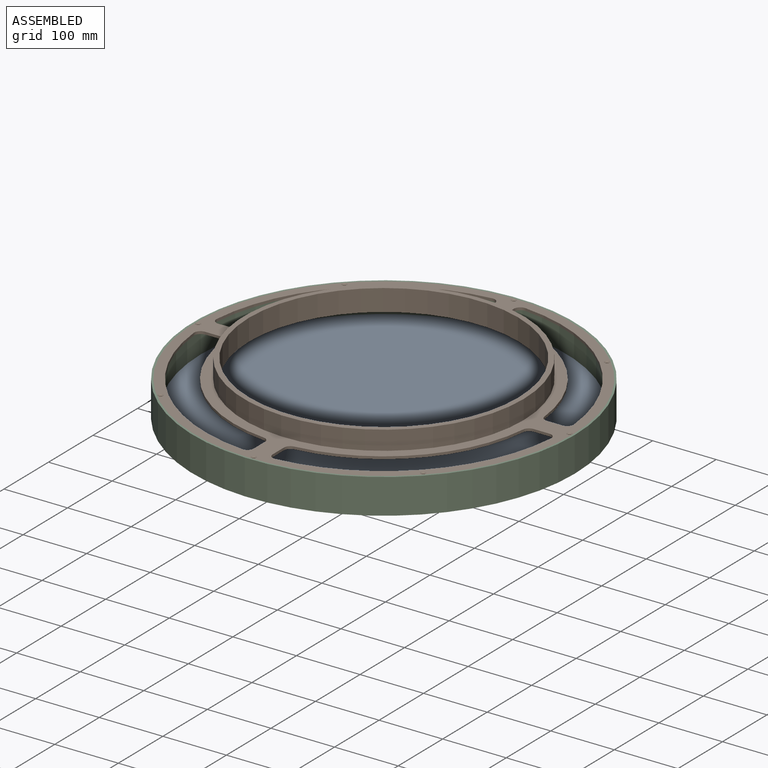
[diagram: assembled view]
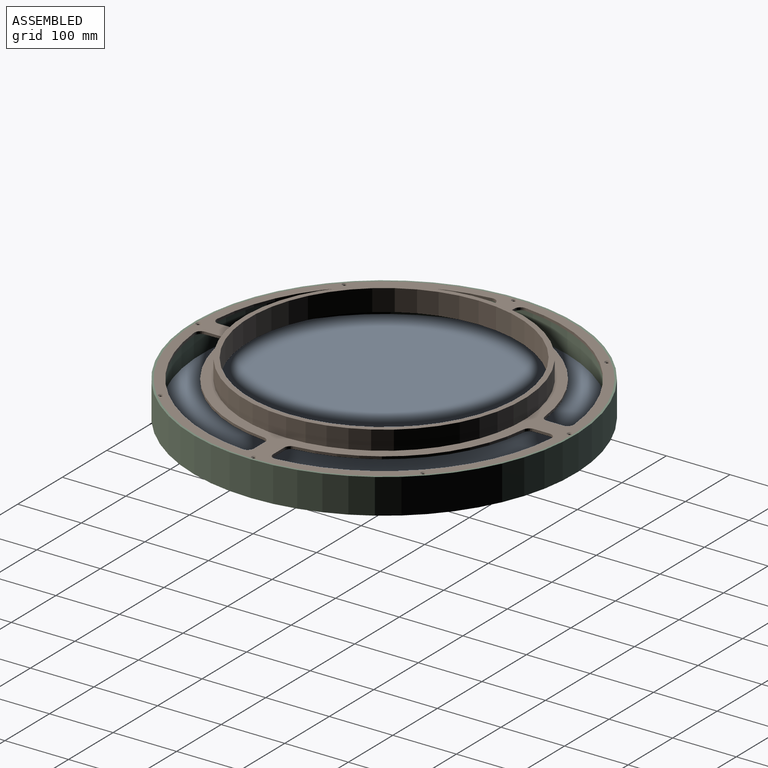
[diagram: assembled view, second angle]
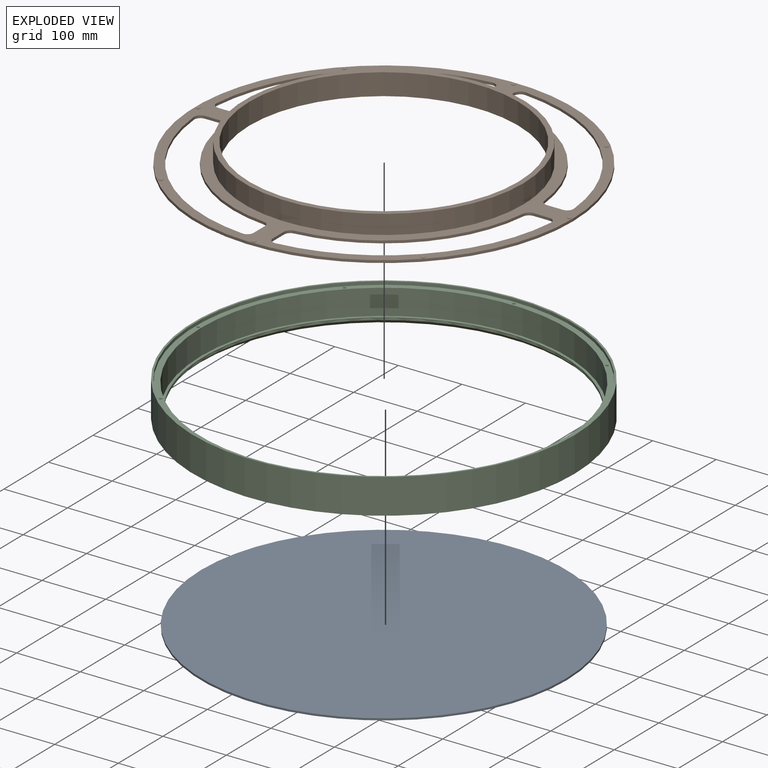
[diagram: exploded view]
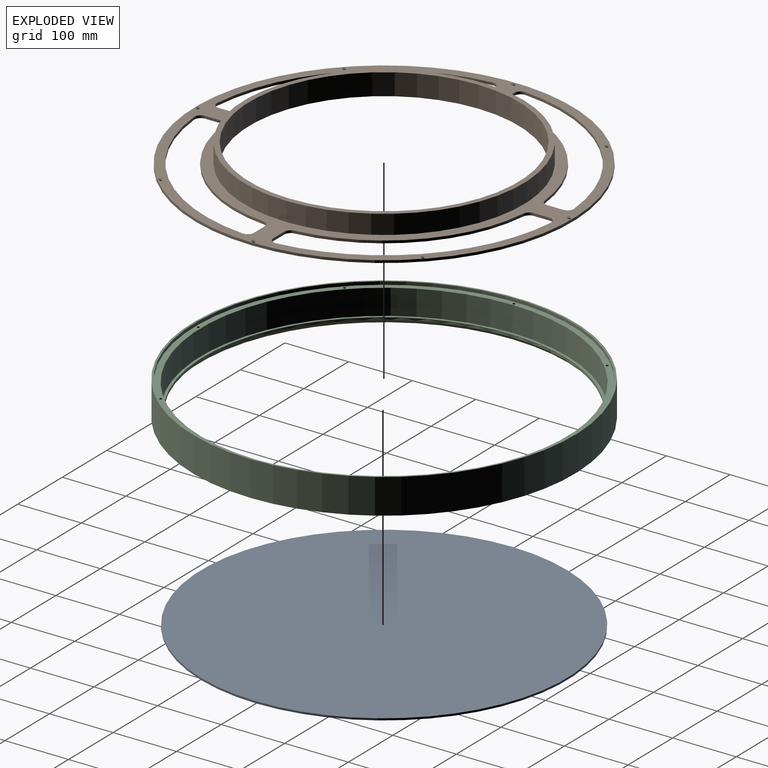
[diagram: exploded view, second angle]
ASSEMBLY  parts=3 mates=4
PART A: 3 faces, bbox 575x575x3 mm
  f0: cylinder r=287.5mm len=575mm, axis (0,0,-1), area 5419.2mm2, adj f1,f2
  f1: plane 575x575mm, normal (0,0,1), area 259672.3mm2, adj f0
  f2: plane 575x575mm, normal (0,0,-1), area 259672.3mm2, adj f0
PART B: 54 faces, bbox 594x594x34 mm
  f0: cylinder r=220mm len=440mm, axis (0,0,1), area 41469mm2, adj f1,f5
  f1: plane 594x594mm, normal (0,0,1), area 57037.7mm2, adj f0,f2,f6,f7,f8,f9,f10,f11
  f2: cylinder r=297mm len=594mm, axis (0,0,1), area 7464.4mm2, adj f1,f3
  f3: plane 594x594mm, normal (0,0,-1), area 68169.9mm2, adj f2,f4,f6,f7,f8,f9,f10,f11
  f4: cylinder r=212mm len=424mm, axis (0,0,1), area 45289.2mm2, adj f3,f5
  f5: plane 440x440mm, normal (0,0,1), area 10857.3mm2, adj f0,f4
  f6: plane 25.12x4mm, normal (-1,0,0), area 100.5mm2, adj f1,f3,f10,f11
  f7: cylinder r=237mm len=211.8mm, axis (0,0,1), area 1296.9mm2, adj f1,f3,f10,f12
  f8: cylinder r=282mm len=254.89mm, axis (0,0,1), area 1564.2mm2, adj f1,f3,f11,f13
  f9: plane 25.12x4mm, normal (0,1,0), area 100.5mm2, adj f1,f3,f12,f13
  f10: cylinder r=10mm len=9.95mm, axis (0,0,1), area 58.8mm2, adj f1,f3,f6,f7
  f11: cylinder r=10mm len=10.92mm, axis (0,0,1), area 66.5mm2, adj f1,f3,f6,f8
  f12: cylinder r=10mm len=9.95mm, axis (0,0,1), area 58.8mm2, adj f1,f3,f7,f9
  f13: cylinder r=10mm len=10.92mm, axis (0,0,1), area 66.5mm2, adj f1,f3,f8,f9
  f14: plane 25.12x4mm, normal (0,1,0), area 100.5mm2, adj f1,f3,f18,f19
  f15: cylinder r=237mm len=211.8mm, axis (0,0,1), area 1296.9mm2, adj f1,f3,f18,f20
  f16: cylinder r=282mm len=254.89mm, axis (0,0,1), area 1564.2mm2, adj f1,f3,f19,f21
  f17: plane 25.12x4mm, normal (1,0,0), area 100.5mm2, adj f1,f3,f20,f21
  f18: cylinder r=10mm len=9.95mm, axis (0,0,1), area 58.8mm2, adj f1,f3,f14,f15
  f19: cylinder r=10mm len=10.92mm, axis (0,0,1), area 66.5mm2, adj f1,f3,f14,f16
  f20: cylinder r=10mm len=9.95mm, axis (0,0,1), area 58.8mm2, adj f1,f3,f15,f17
  f21: cylinder r=10mm len=10.92mm, axis (0,0,1), area 66.5mm2, adj f1,f3,f16,f17
  f22: plane 25.12x4mm, normal (1,0,0), area 100.5mm2, adj f1,f3,f26,f27
  f23: cylinder r=237mm len=211.8mm, axis (0,0,1), area 1296.9mm2, adj f1,f3,f26,f28
  f24: cylinder r=282mm len=254.89mm, axis (0,0,1), area 1564.2mm2, adj f1,f3,f27,f29
  f25: plane 25.12x4mm, normal (0,-1,0), area 100.5mm2, adj f1,f3,f28,f29
  f26: cylinder r=10mm len=9.95mm, axis (0,0,1), area 58.8mm2, adj f1,f3,f22,f23
  f27: cylinder r=10mm len=10.92mm, axis (0,0,1), area 66.5mm2, adj f1,f3,f22,f24
  f28: cylinder r=10mm len=9.95mm, axis (0,0,1), area 58.8mm2, adj f1,f3,f23,f25
  f29: cylinder r=10mm len=10.92mm, axis (0,0,1), area 66.5mm2, adj f1,f3,f24,f25
  f30: plane 25.12x4mm, normal (0,-1,0), area 100.5mm2, adj f1,f3,f34,f35
  f31: cylinder r=237mm len=211.8mm, axis (0,0,1), area 1296.9mm2, adj f1,f3,f34,f36
  f32: cylinder r=282mm len=254.89mm, axis (0,0,1), area 1564.2mm2, adj f1,f3,f35,f37
  f33: plane 25.12x4mm, normal (-1,0,0), area 100.5mm2, adj f1,f3,f36,f37
  f34: cylinder r=10mm len=9.95mm, axis (0,0,1), area 58.8mm2, adj f1,f3,f30,f31
  f35: cylinder r=10mm len=10.92mm, axis (0,0,1), area 66.5mm2, adj f1,f3,f30,f32
  f36: cylinder r=10mm len=9.95mm, axis (0,0,1), area 58.8mm2, adj f1,f3,f31,f33
  f37: cylinder r=10mm len=10.92mm, axis (0,0,1), area 66.5mm2, adj f1,f3,f32,f33
  f38: cylinder r=2.25mm len=4.5mm, axis (0,0,1), area 31.8mm2, adj f3,f39
  f39: cone r=2.25mm half-angle=45deg, axis (0,0,1), area 48.6mm2, adj f1,f38
  f40: cylinder r=2.25mm len=4.5mm, axis (0,0,1), area 31.8mm2, adj f3,f41
  f41: cone r=2.25mm half-angle=45deg, axis (0,0,1), area 48.6mm2, adj f1,f40
  f42: cylinder r=2.25mm len=4.5mm, axis (0,0,1), area 31.8mm2, adj f3,f43
  f43: cone r=2.25mm half-angle=45deg, axis (0,0,1), area 48.6mm2, adj f1,f42
  f44: cylinder r=2.25mm len=4.5mm, axis (0,0,1), area 31.8mm2, adj f3,f45
  f45: cone r=2.25mm half-angle=45deg, axis (0,0,1), area 48.6mm2, adj f1,f44
  f46: cylinder r=2.25mm len=4.5mm, axis (0,0,1), area 31.8mm2, adj f3,f47
  f47: cone r=2.25mm half-angle=45deg, axis (0,0,1), area 48.6mm2, adj f1,f46
  f48: cylinder r=2.25mm len=4.5mm, axis (0,0,1), area 31.8mm2, adj f3,f49
  f49: cone r=2.25mm half-angle=45deg, axis (0,0,1), area 48.6mm2, adj f1,f48
  f50: cylinder r=2.25mm len=4.5mm, axis (0,0,1), area 31.8mm2, adj f3,f51
  f51: cone r=2.25mm half-angle=45deg, axis (0,0,1), area 48.6mm2, adj f1,f50
  f52: cylinder r=2.25mm len=4.5mm, axis (0,0,1), area 31.8mm2, adj f3,f53
  f53: cone r=2.25mm half-angle=45deg, axis (0,0,1), area 48.6mm2, adj f1,f52
PART C: 25 faces, bbox 600x600x55 mm
  f0: plane 600x600mm, normal (0,0,1), area 5626.6mm2, adj f1,f7
  f1: cylinder r=300mm len=600mm, axis (0,0,1), area 103672.6mm2, adj f0,f2
  f2: plane 600x600mm, normal (0,0,-1), area 18535.4mm2, adj f1,f8
  f3: cylinder r=284mm len=568mm, axis (0,0,1), area 7137.7mm2, adj f4,f8
  f4: plane 576x576mm, normal (0,0,1), area 7188mm2, adj f3,f5
  f5: cylinder r=288mm len=576mm, axis (0,0,1), area 72382.3mm2, adj f4,f6
  f6: plane 594x594mm, normal (0,0,1), area 16413.3mm2, adj f5,f7,f10,f12,f14,f16,f18,f20
  f7: cylinder r=297mm len=594mm, axis (0,0,1), area 9330.5mm2, adj f0,f6
  f8: cone r=290mm half-angle=45deg, axis (0,0,-1), area 15301.3mm2, adj f2,f3
  f9: cone r=0mm half-angle=59deg, axis (0,0,1), area 18.6mm2, adj f10
  f10: cylinder r=2.25mm len=15mm, axis (0,0,1), area 212.1mm2, adj f6,f9
  f11: cone r=0mm half-angle=59deg, axis (0,0,1), area 18.6mm2, adj f12
  f12: cylinder r=2.25mm len=15mm, axis (0,0,1), area 212.1mm2, adj f6,f11
  f13: cone r=0mm half-angle=59deg, axis (0,0,1), area 18.6mm2, adj f14
  f14: cylinder r=2.25mm len=15mm, axis (0,0,1), area 212.1mm2, adj f6,f13
  f15: cone r=0mm half-angle=59deg, axis (0,0,1), area 18.6mm2, adj f16
  f16: cylinder r=2.25mm len=15mm, axis (0,0,1), area 212.1mm2, adj f6,f15
  f17: cone r=0mm half-angle=59deg, axis (0,0,1), area 18.6mm2, adj f18
  f18: cylinder r=2.25mm len=15mm, axis (0,0,1), area 212.1mm2, adj f6,f17
  f19: cone r=0mm half-angle=59deg, axis (0,0,1), area 18.6mm2, adj f20
  f20: cylinder r=2.25mm len=15mm, axis (0,0,1), area 212.1mm2, adj f6,f19
  f21: cone r=0mm half-angle=59deg, axis (0,0,1), area 18.6mm2, adj f22
  f22: cylinder r=2.25mm len=15mm, axis (0,0,1), area 212.1mm2, adj f6,f21
  f23: cone r=0mm half-angle=59deg, axis (0,0,1), area 18.6mm2, adj f24
  f24: cylinder r=2.25mm len=15mm, axis (0,0,1), area 212.1mm2, adj f6,f23
PLACE A t=(-43.54,15.79,-51.44)mm
PLACE B t=(-43.54,15.79,-6.44)mm
PLACE C t=(-43.54,15.79,-6.44)mm
MATE cylindrical B.f0 <-> C.f1  axis (0,0,1) through (-43.54,15.79,-8.44)mm
MATE cylindrical A.f0 <-> C.f1  axis (0,0,-1) through (-43.54,15.79,-51.44)mm
MATE planar C.f1 <-> B.f24  axis (0,0,1) through (-43.54,15.79,-6.44)mm
MATE planar A.f0 <-> C.f1  axis (0,0,-1) through (-43.54,15.79,-51.44)mm
